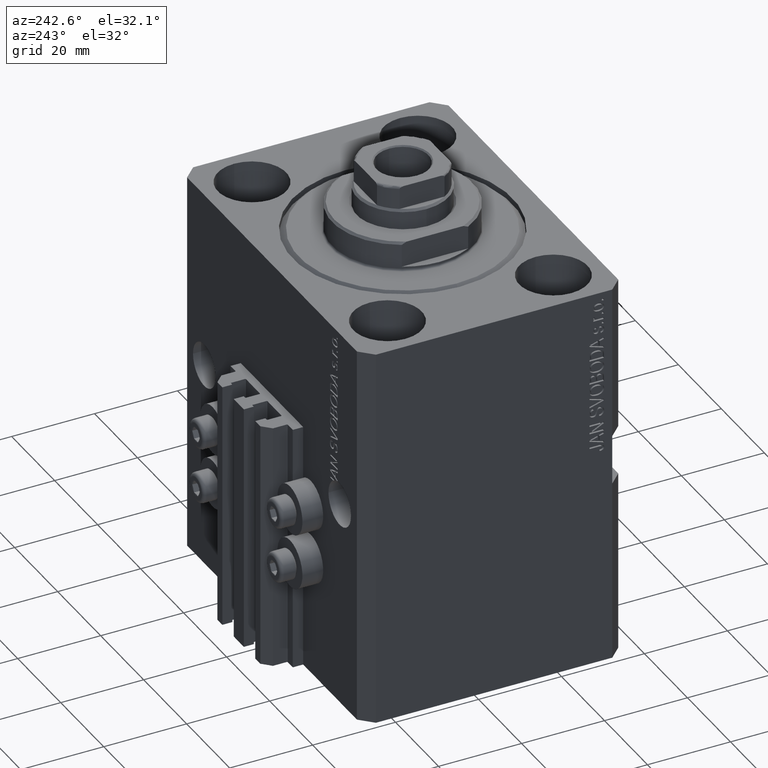
[diagram: clean part render]
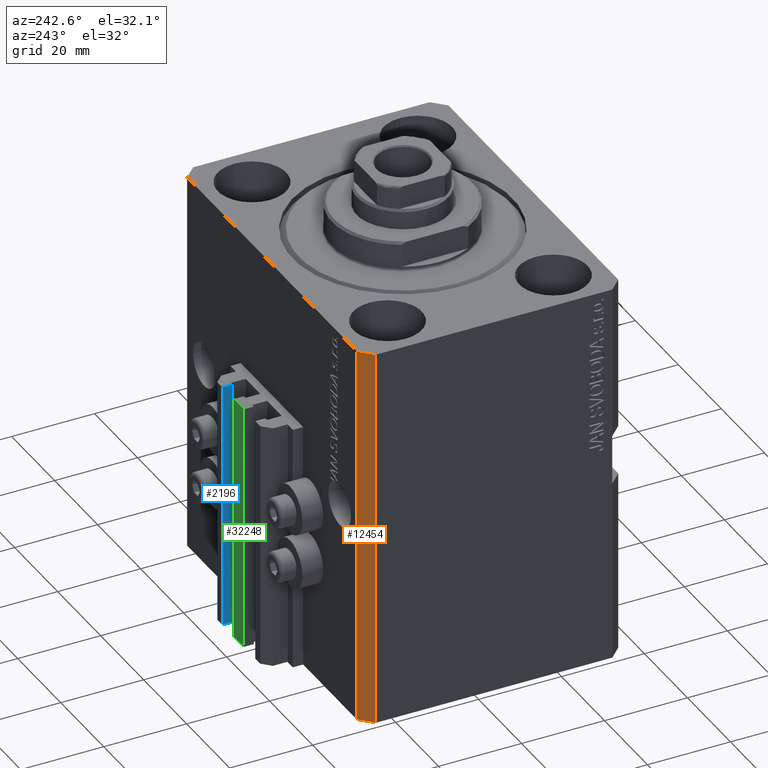
[diagram: same view with three faces highlighted in distinct colors, each labeled with its STEP entity id]
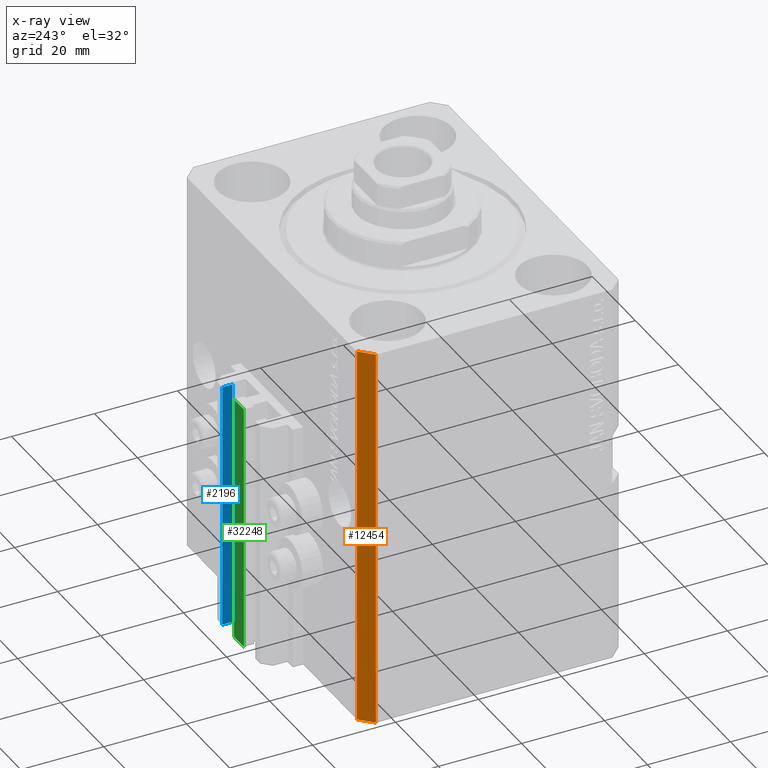
[diagram: x-ray of the same camera — body ghosted, the three highlighted faces saturated]
A machine part, auxiliary view with three faces highlighted in distinct colors.
The next image is the same camera in x-ray (body ghosted, the three faces saturated) — at least one of them is partly hidden behind the body in this view.
Their STEP definitions:

[orange] entity #12454 — the highlighted planar face has unit normal (-0.7071, 0.7071, 0).
#4774 = CARTESIAN_POINT ( 'NONE',  ( -39.50000000000000711, 31.50000000000000000, 0.000000000000000000 ) ) ;
#7760 = CARTESIAN_POINT ( 'NONE',  ( -39.50000000000000711, 31.50000000000000000, 0.000000000000000000 ) ) ;
#8358 = DIRECTION ( 'NONE',  ( 0.000000000000000000, 0.000000000000000000, 1.000000000000000000 ) ) ;
#8621 = EDGE_LOOP ( 'NONE', ( #30467, #32443, #19818, #24685 ) ) ;
#8978 = VERTEX_POINT ( 'NONE', #28728 ) ;
#10724 = EDGE_CURVE ( 'NONE', #8978, #30717, #37269, .T. ) ;
#12454 = ADVANCED_FACE ( 'NONE', ( #45997 ), #31319, .T. ) ;
#15340 = LINE ( 'NONE', #26880, #33653 ) ;
#15362 = CARTESIAN_POINT ( 'NONE',  ( -42.50000000000000000, 28.50000000000000000, -93.00000000000000000 ) ) ;
#16355 = CARTESIAN_POINT ( 'NONE',  ( -39.50000000000000711, 31.50000000000000000, -93.00000000000000000 ) ) ;
#16393 = CARTESIAN_POINT ( 'NONE',  ( -39.50000000000000711, 31.50000000000000000, -93.00000000000000000 ) ) ;
#16930 = AXIS2_PLACEMENT_3D ( 'NONE', #16393, #42138, #27215 ) ;
#18785 = VECTOR ( 'NONE', #38227, 1000.000000000000000 ) ;
#19550 = CARTESIAN_POINT ( 'NONE',  ( -39.50000000000000711, 31.50000000000000000, -93.00000000000000000 ) ) ;
#19818 = ORIENTED_EDGE ( 'NONE', *, *, #41456, .T. ) ;
#22109 = EDGE_CURVE ( 'NONE', #24842, #28162, #30152, .T. ) ;
#24685 = ORIENTED_EDGE ( 'NONE', *, *, #10724, .T. ) ;
#24842 = VERTEX_POINT ( 'NONE', #16355 ) ;
#26403 = DIRECTION ( 'NONE',  ( -0.7071067811865471286, -0.7071067811865479058, 0.000000000000000000 ) ) ;
#26880 = CARTESIAN_POINT ( 'NONE',  ( -39.50000000000000711, 31.50000000000000000, -93.00000000000000000 ) ) ;
#26912 = LINE ( 'NONE', #4774, #18785 ) ;
#27215 = DIRECTION ( 'NONE',  ( -0.7071067811865471286, -0.7071067811865479058, 0.000000000000000000 ) ) ;
#28162 = VERTEX_POINT ( 'NONE', #7760 ) ;
#28728 = CARTESIAN_POINT ( 'NONE',  ( -42.50000000000000000, 28.50000000000000000, -93.00000000000000000 ) ) ;
#29999 = EDGE_CURVE ( 'NONE', #28162, #30717, #26912, .T. ) ;
#30152 = LINE ( 'NONE', #19550, #36315 ) ;
#30467 = ORIENTED_EDGE ( 'NONE', *, *, #29999, .F. ) ;
#30717 = VERTEX_POINT ( 'NONE', #46481 ) ;
#31319 = PLANE ( 'NONE',  #16930 ) ;
#32443 = ORIENTED_EDGE ( 'NONE', *, *, #22109, .F. ) ;
#33541 = DIRECTION ( 'NONE',  ( 0.000000000000000000, 0.000000000000000000, 1.000000000000000000 ) ) ;
#33653 = VECTOR ( 'NONE', #26403, 1000.000000000000000 ) ;
#36315 = VECTOR ( 'NONE', #33541, 1000.000000000000000 ) ;
#37269 = LINE ( 'NONE', #15362, #44537 ) ;
#38227 = DIRECTION ( 'NONE',  ( -0.7071067811865471286, -0.7071067811865479058, 0.000000000000000000 ) ) ;
#41456 = EDGE_CURVE ( 'NONE', #24842, #8978, #15340, .T. ) ;
#42138 = DIRECTION ( 'NONE',  ( -0.7071067811865479058, 0.7071067811865471286, 0.000000000000000000 ) ) ;
#44537 = VECTOR ( 'NONE', #8358, 1000.000000000000000 ) ;
#45997 = FACE_OUTER_BOUND ( 'NONE', #8621, .T. ) ;
#46481 = CARTESIAN_POINT ( 'NONE',  ( -42.50000000000000000, 28.50000000000000000, 0.000000000000000000 ) ) ;

[blue] entity #2196 — the highlighted planar face has unit normal (-1, 0, 0).
#145 = DIRECTION ( 'NONE',  ( 0.000000000000000000, -1.000000000000000000, 0.000000000000000000 ) ) ;
#695 = VECTOR ( 'NONE', #145, 1000.000000000000000 ) ;
#1207 = ORIENTED_EDGE ( 'NONE', *, *, #45153, .T. ) ;
#2196 = ADVANCED_FACE ( 'NONE', ( #36863 ), #21701, .T. ) ;
#2548 = VERTEX_POINT ( 'NONE', #28100 ) ;
#7484 = CARTESIAN_POINT ( 'NONE',  ( 7.649999999999998579, 39.50000000000002132, -93.00000000000000000 ) ) ;
#8097 = AXIS2_PLACEMENT_3D ( 'NONE', #7484, #18568, #33253 ) ;
#10112 = EDGE_LOOP ( 'NONE', ( #18795, #32772, #1207, #27818 ) ) ;
#11674 = CARTESIAN_POINT ( 'NONE',  ( 7.649999999999998579, 39.50000000000002132, -93.00000000000000000 ) ) ;
#16183 = LINE ( 'NONE', #45540, #19732 ) ;
#16361 = LINE ( 'NONE', #33948, #36357 ) ;
#18285 = LINE ( 'NONE', #32972, #33425 ) ;
#18568 = DIRECTION ( 'NONE',  ( -1.000000000000000000, 0.000000000000000000, 0.000000000000000000 ) ) ;
#18795 = ORIENTED_EDGE ( 'NONE', *, *, #40016, .F. ) ;
#19732 = VECTOR ( 'NONE', #27971, 1000.000000000000000 ) ;
#21701 = PLANE ( 'NONE',  #8097 ) ;
#25616 = EDGE_CURVE ( 'NONE', #40262, #28631, #16361, .T. ) ;
#27818 = ORIENTED_EDGE ( 'NONE', *, *, #30942, .T. ) ;
#27971 = DIRECTION ( 'NONE',  ( 0.000000000000000000, -1.000000000000000000, 0.000000000000000000 ) ) ;
#28100 = CARTESIAN_POINT ( 'NONE',  ( 7.649999999999998579, 37.10000000000002274, -93.00000000000000000 ) ) ;
#28631 = VERTEX_POINT ( 'NONE', #47323 ) ;
#30942 = EDGE_CURVE ( 'NONE', #2548, #37274, #18285, .T. ) ;
#31052 = CARTESIAN_POINT ( 'NONE',  ( 7.649999999999998579, 39.50000000000002132, -93.00000000000000000 ) ) ;
#32772 = ORIENTED_EDGE ( 'NONE', *, *, #25616, .F. ) ;
#32972 = CARTESIAN_POINT ( 'NONE',  ( 7.649999999999998579, 37.10000000000002274, -93.00000000000000000 ) ) ;
#33253 = DIRECTION ( 'NONE',  ( 0.000000000000000000, 0.000000000000000000, 1.000000000000000000 ) ) ;
#33425 = VECTOR ( 'NONE', #36823, 1000.000000000000000 ) ;
#33948 = CARTESIAN_POINT ( 'NONE',  ( 7.649999999999998579, 39.50000000000002132, -93.00000000000000000 ) ) ;
#36357 = VECTOR ( 'NONE', #41621, 1000.000000000000000 ) ;
#36823 = DIRECTION ( 'NONE',  ( 0.000000000000000000, 0.000000000000000000, 1.000000000000000000 ) ) ;
#36863 = FACE_OUTER_BOUND ( 'NONE', #10112, .T. ) ;
#37274 = VERTEX_POINT ( 'NONE', #37279 ) ;
#37279 = CARTESIAN_POINT ( 'NONE',  ( 7.649999999999998579, 37.10000000000002274, -33.00000000000000000 ) ) ;
#40016 = EDGE_CURVE ( 'NONE', #28631, #37274, #16183, .T. ) ;
#40262 = VERTEX_POINT ( 'NONE', #31052 ) ;
#41621 = DIRECTION ( 'NONE',  ( 0.000000000000000000, 0.000000000000000000, 1.000000000000000000 ) ) ;
#44661 = LINE ( 'NONE', #11674, #695 ) ;
#45153 = EDGE_CURVE ( 'NONE', #40262, #2548, #44661, .T. ) ;
#45540 = CARTESIAN_POINT ( 'NONE',  ( 7.649999999999998579, 39.50000000000002132, -33.00000000000000000 ) ) ;
#47323 = CARTESIAN_POINT ( 'NONE',  ( 7.649999999999998579, 39.50000000000002132, -33.00000000000000000 ) ) ;

[green] entity #32248 — the highlighted planar face has unit normal (0, -1, 0).
#1501 = DIRECTION ( 'NONE',  ( 1.000000000000000000, 0.000000000000000000, 0.000000000000000000 ) ) ;
#2885 = VECTOR ( 'NONE', #36830, 1000.000000000000000 ) ;
#6095 = EDGE_CURVE ( 'NONE', #31820, #6458, #44280, .T. ) ;
#6458 = VERTEX_POINT ( 'NONE', #40361 ) ;
#7575 = FACE_OUTER_BOUND ( 'NONE', #17918, .T. ) ;
#7689 = CARTESIAN_POINT ( 'NONE',  ( -2.350000000000003642, 39.50000000000000711, -33.00000000000000000 ) ) ;
#7892 = ORIENTED_EDGE ( 'NONE', *, *, #6095, .T. ) ;
#8791 = DIRECTION ( 'NONE',  ( 0.000000000000000000, 0.000000000000000000, 1.000000000000000000 ) ) ;
#9200 = VECTOR ( 'NONE', #39442, 1000.000000000000000 ) ;
#9222 = EDGE_CURVE ( 'NONE', #40905, #34266, #34481, .T. ) ;
#9340 = ORIENTED_EDGE ( 'NONE', *, *, #9222, .F. ) ;
#12528 = ORIENTED_EDGE ( 'NONE', *, *, #15607, .T. ) ;
#12889 = CARTESIAN_POINT ( 'NONE',  ( 2.349999999999999645, 39.50000000000000711, -93.00000000000000000 ) ) ;
#15607 = EDGE_CURVE ( 'NONE', #40905, #31820, #35132, .T. ) ;
#17371 = CARTESIAN_POINT ( 'NONE',  ( -2.350000000000003642, 39.50000000000000711, -93.00000000000000000 ) ) ;
#17918 = EDGE_LOOP ( 'NONE', ( #7892, #18514, #9340, #12528 ) ) ;
#18415 = DIRECTION ( 'NONE',  ( 0.000000000000000000, -0.000000000000000000, -1.000000000000000000 ) ) ;
#18514 = ORIENTED_EDGE ( 'NONE', *, *, #19291, .F. ) ;
#19291 = EDGE_CURVE ( 'NONE', #34266, #6458, #41535, .T. ) ;
#23702 = VECTOR ( 'NONE', #1501, 1000.000000000000000 ) ;
#24755 = CARTESIAN_POINT ( 'NONE',  ( -2.350000000000003642, 39.50000000000000711, -93.00000000000000000 ) ) ;
#26926 = CARTESIAN_POINT ( 'NONE',  ( -2.350000000000003642, 39.50000000000000711, -33.00000000000000000 ) ) ;
#29005 = CARTESIAN_POINT ( 'NONE',  ( -2.350000000000003642, 39.50000000000000711, -93.00000000000000000 ) ) ;
#29807 = CARTESIAN_POINT ( 'NONE',  ( 2.349999999999999645, 39.50000000000000711, -93.00000000000000000 ) ) ;
#31820 = VERTEX_POINT ( 'NONE', #26926 ) ;
#32248 = ADVANCED_FACE ( 'NONE', ( #7575 ), #36716, .F. ) ;
#34266 = VERTEX_POINT ( 'NONE', #29807 ) ;
#34481 = LINE ( 'NONE', #46022, #23702 ) ;
#35132 = LINE ( 'NONE', #24755, #9200 ) ;
#36716 = PLANE ( 'NONE',  #41135 ) ;
#36830 = DIRECTION ( 'NONE',  ( 1.000000000000000000, 0.000000000000000000, 0.000000000000000000 ) ) ;
#39321 = VECTOR ( 'NONE', #8791, 1000.000000000000000 ) ;
#39442 = DIRECTION ( 'NONE',  ( 0.000000000000000000, 0.000000000000000000, 1.000000000000000000 ) ) ;
#40361 = CARTESIAN_POINT ( 'NONE',  ( 2.349999999999999645, 39.50000000000000711, -33.00000000000000000 ) ) ;
#40905 = VERTEX_POINT ( 'NONE', #17371 ) ;
#41135 = AXIS2_PLACEMENT_3D ( 'NONE', #29005, #43932, #18415 ) ;
#41535 = LINE ( 'NONE', #12889, #39321 ) ;
#43932 = DIRECTION ( 'NONE',  ( 0.000000000000000000, -1.000000000000000000, 0.000000000000000000 ) ) ;
#44280 = LINE ( 'NONE', #7689, #2885 ) ;
#46022 = CARTESIAN_POINT ( 'NONE',  ( -2.350000000000003642, 39.50000000000000711, -93.00000000000000000 ) ) ;